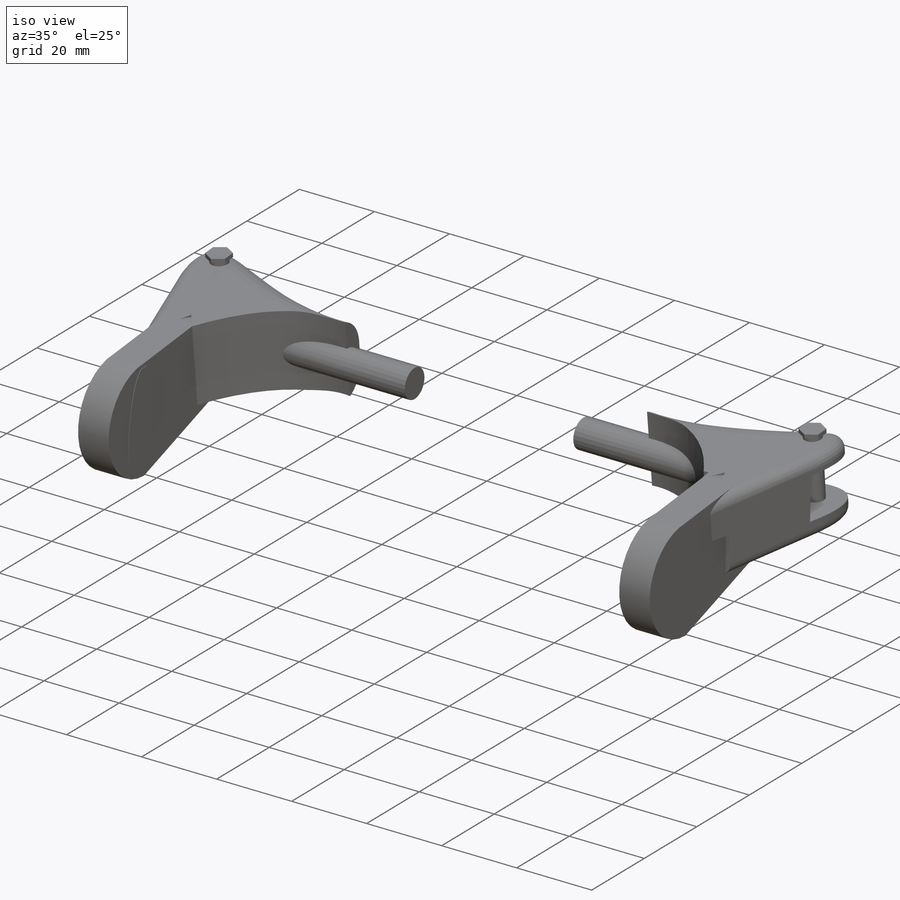
[diagram: iso view]
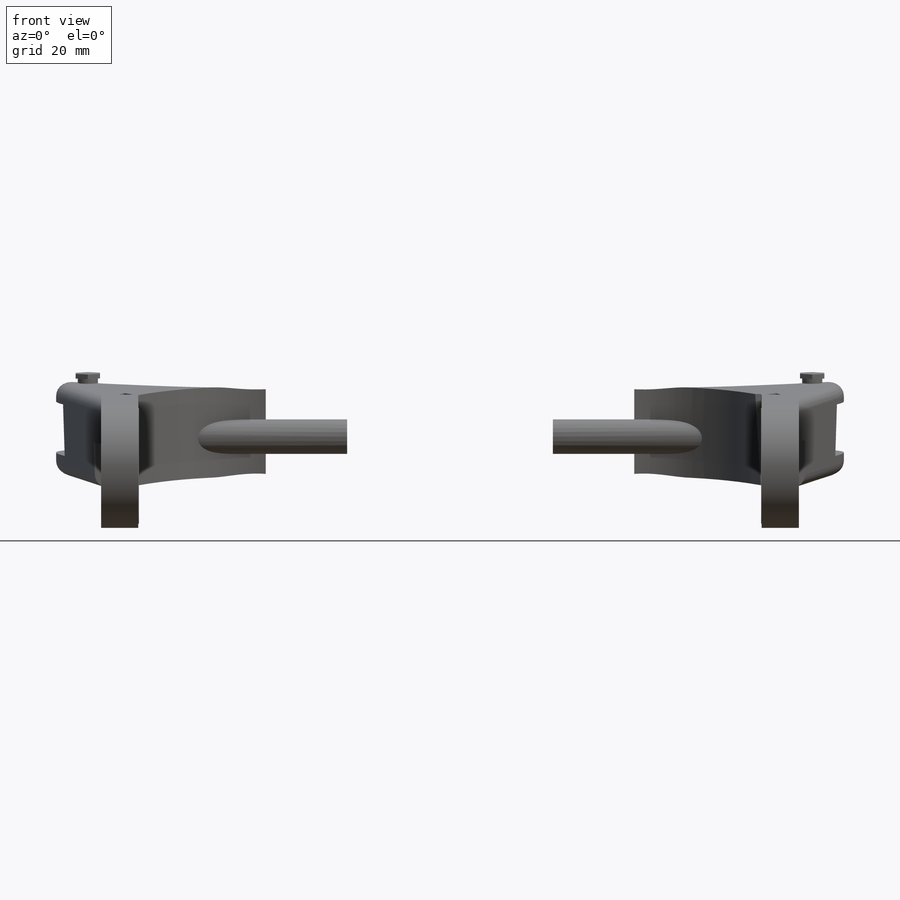
[diagram: front view]
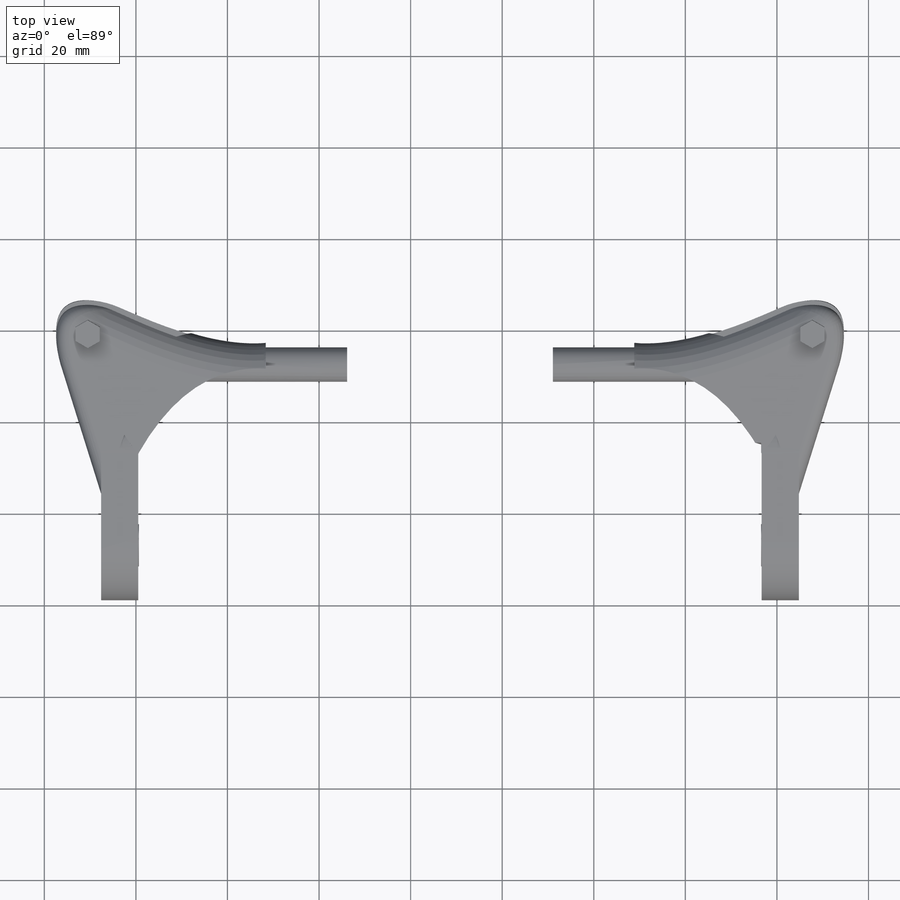
[diagram: top view]
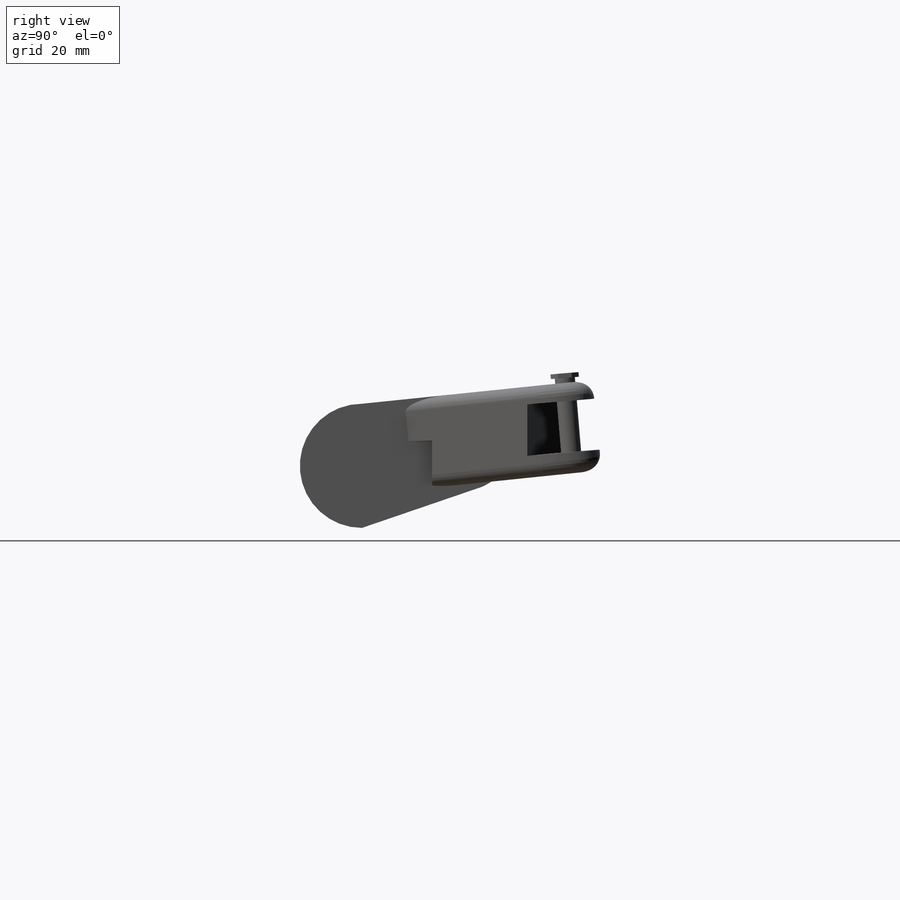
[diagram: right view]
SOLIDWORKS PART (.sldprt)
format: sldprt  version: not decoded by parser v0  size: 1,542,144 bytes
history: native  units: mm
features: sketch x29, cut_extrude x9, mirror x6, extrude x6, plane x5, fillet x5, sweep x3, material x1, revolve x1 (+12 scaffold rows collapsed)
feature tree (77):
  scaffold x12  (default folders/planes/origin — collapsed)
  material  "Material <not specified>"
  sketch  "Sketch1"  dims[D1=431.8mm]
  sketch  "3DSketch1"
  sketch  "3DSketch2"  dims[c1.D1=0.0mm c2.D1=~25.666401mm c3.D1=25.4mm]
  sweep  "Sweep1"
  sketch  "Sketch2"  dims[D1=0.0mm]
  sweep  "Sweep2"
  plane  "Plane1"  Offset=228.6mm
  mirror  "Mirror1"
  sketch  "Sketch3"  dims[D1=~82.630319mm]
  sketch  "3DSketch4"  dims[D1=~23.938873mm]
  sketch  "Sketch8"  dims[D1=~31.039261mm]
  plane  "Plane4"  Offset=25.4mm
  sketch  "Sketch9"  dims[D1=~34.855898mm]
  plane  "Plane5"  Offset=50.8mm
  sketch  "Sketch10"  dims[D1=~30.98491mm]
  plane  "Plane6"  Offset=50.8mm
  sketch  "Sketch11"  dims[D1=~36.005116mm]
  plane  "Plane7"  Offset=25.4mm
  sketch  "Sketch12"  dims[D1=~21.357885mm]
  mirror  "Mirror3"
  mirror  "Mirror4"
  fillet  "Fillet4"  Radius=15.24mm
  fillet  "Fillet5"  Radius=15.24mm
  sketch  "Sketch13"  dims[D1=209.0717mm]
  revolve  "Revolve1"  Angle=360deg Surface-Fill2=0deg Surface-Fill3=0deg
  sketch  "Sketch14"  dims[D1=0.0mm]
  cut_extrude  "Cut-Extrude1"  Depth=15.24mm Surface-Fill4=0deg
  sketch  "Sketch15"  dims[D1=0.0mm]
  cut_extrude  "Cut-Extrude2"  Depth=15.24mm
  sketch  "Sketch16"  dims[D1=0.0mm]
  sketch  "3DSketch5"
  sweep  "Sweep3"
  mirror  "Mirror5"
  fillet  "Fillet6"  Radius=7.62mm
  sketch  "Sketch19"  dims[D1=~27.115721mm]
  extrude  "Boss-Extrude1"  Depth=8.128mm
  sketch  "Sketch20"
  extrude  "Boss-Extrude2"  Depth=19.812mm
  sketch  "Sketch22"  dims[D1=~4.640624mm]
  extrude  "Boss-Extrude3"  Depth=19.812mm
  fillet  "Fillet7"  Radius=7.62mm
  fillet  "Fillet9"  Radius=2.794mm
  sketch  "Sketch25"  dims[D1=~11.376778mm]
  cut_extrude  "Cut-Extrude3"  Depth=41.656mm
  sketch  "Sketch26"  dims[D1=~7.528876mm]
  extrude  "Boss-Extrude4"  Depth=35.56mm
  mirror  "Mirror6"
  sketch  "Sketch27"  dims[D1=~89.520057mm D2=~94.604541mm]
  cut_extrude  "Cut-Extrude4"  Depth=231.14mm
  sketch  "Sketch28"  dims[c1.D1=~112.158645mm c1.D2=~251.524624mm c2.D1=~159.514817mm c2.D2=~227.284075mm]
  cut_extrude  "Cut-Extrude5"  Depth=231.14mm
  sketch  "Sketch29"  dims[D1=~64.111035mm D2=~133.763773mm]
  cut_extrude  "Cut-Extrude6"  Depth=231.14mm
  sketch  "Sketch30"  dims[D1=0.0mm D2=0.0mm]
  cut_extrude  "Cut-Extrude7"  Depth=6.096mm
  sketch  "Sketch31"  dims[D1=0.0mm]
  cut_extrude  "Cut-Extrude8"  Depth=6.096mm
  sketch  "Sketch32"  dims[D1=~35.044517mm D2=~12.534922mm]
  cut_extrude  "Cut-Extrude9"  Depth=19.05mm
  sketch  "Sketch34"  dims[D1=~4.408135mm]
  extrude  "Boss-Extrude5"  Depth=16.256mm
  sketch  "Sketch35"
  extrude  "Boss-Extrude6"  Depth=1.016mm
  mirror  "Mirror8"
decode coverage: 46 of 59 modeling features carry decoded parameters
note: ~ marks probable driven/reference dimensions
note: suppression state not decoded; provenance and decode notes live in map.json
